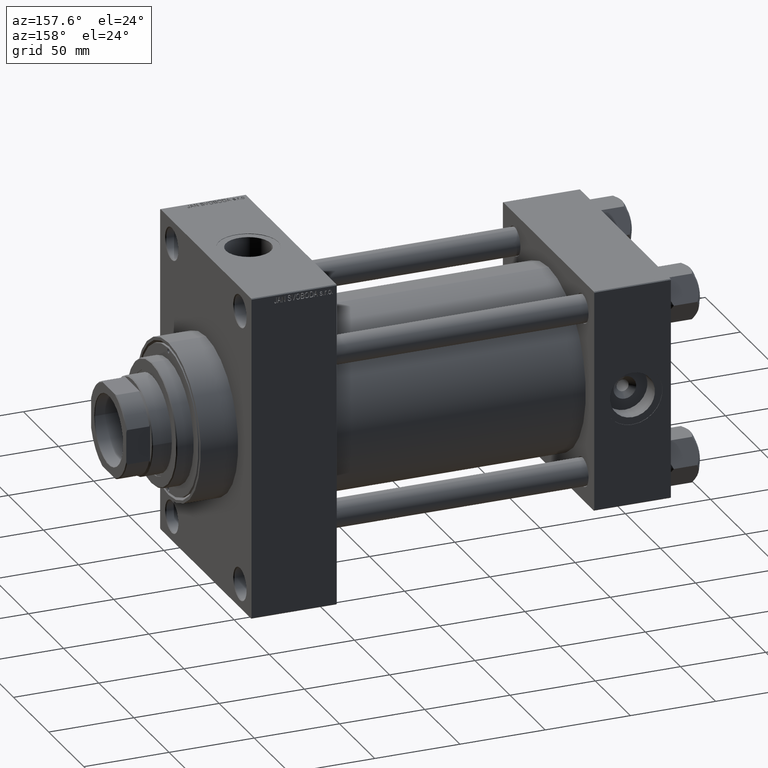
[diagram: clean part render]
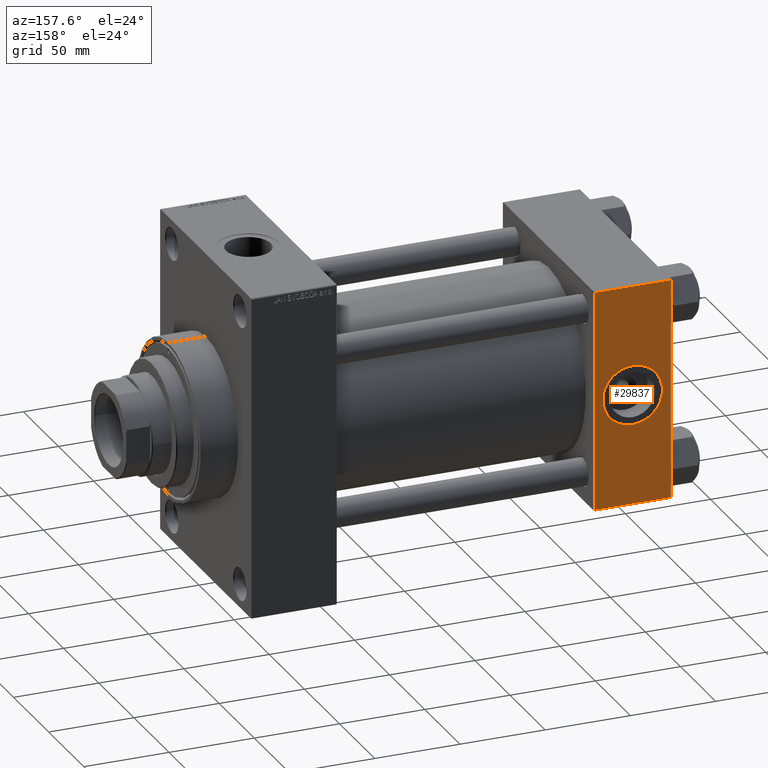
[diagram: same view with one face highlighted and labeled with its STEP entity id]
A machine part, auxiliary view. The second image highlights one B-rep face of the part: STEP entity #29837.
In plain terms, the highlighted planar face has unit normal (0, 1, 0).
Its self-contained STEP definition (entity closure, byte-faithful):
#1156 = FACE_OUTER_BOUND ( 'NONE', #6108, .T. ) ;
#1562 = LINE ( 'NONE', #45698, #44226 ) ;
#2763 = VERTEX_POINT ( 'NONE', #28793 ) ;
#4545 = VERTEX_POINT ( 'NONE', #34103 ) ;
#5015 = EDGE_LOOP ( 'NONE', ( #11752, #7828 ) ) ;
#6108 = EDGE_LOOP ( 'NONE', ( #44855, #47556, #45226, #29508 ) ) ;
#7327 = DIRECTION ( 'NONE',  ( 0.000000000000000000, 1.000000000000000000, 0.000000000000000000 ) ) ;
#7828 = ORIENTED_EDGE ( 'NONE', *, *, #17780, .F. ) ;
#8787 = DIRECTION ( 'NONE',  ( 1.000000000000000000, 0.000000000000000000, 0.000000000000000000 ) ) ;
#10614 = AXIS2_PLACEMENT_3D ( 'NONE', #29166, #7327, #43946 ) ;
#11752 = ORIENTED_EDGE ( 'NONE', *, *, #16948, .F. ) ;
#13026 = DIRECTION ( 'NONE',  ( 0.000000000000000000, -0.000000000000000000, 1.000000000000000000 ) ) ;
#14226 = EDGE_CURVE ( 'NONE', #21975, #23207, #20177, .T. ) ;
#16948 = EDGE_CURVE ( 'NONE', #4545, #19450, #25339, .T. ) ;
#17197 = AXIS2_PLACEMENT_3D ( 'NONE', #46249, #27598, #13026 ) ;
#17780 = EDGE_CURVE ( 'NONE', #19450, #4545, #33139, .T. ) ;
#19149 = CARTESIAN_POINT ( 'NONE',  ( 45.00000000000000000, 65.00000000000000000, -64.49999999999995737 ) ) ;
#19450 = VERTEX_POINT ( 'NONE', #37961 ) ;
#20064 = PLANE ( 'NONE',  #17197 ) ;
#20177 = LINE ( 'NONE', #26759, #42394 ) ;
#20975 = LINE ( 'NONE', #40144, #38892 ) ;
#21975 = VERTEX_POINT ( 'NONE', #39719 ) ;
#23207 = VERTEX_POINT ( 'NONE', #34540 ) ;
#24107 = VERTEX_POINT ( 'NONE', #41262 ) ;
#25147 = EDGE_CURVE ( 'NONE', #2763, #24107, #25980, .T. ) ;
#25339 = CIRCLE ( 'NONE', #10614, 17.50000000000000000 ) ;
#25424 = EDGE_CURVE ( 'NONE', #23207, #2763, #1562, .T. ) ;
#25980 = LINE ( 'NONE', #19149, #44968 ) ;
#26449 = DIRECTION ( 'NONE',  ( -1.000000000000000000, 0.000000000000000000, 0.000000000000000000 ) ) ;
#26759 = CARTESIAN_POINT ( 'NONE',  ( 45.00000000000000000, 65.00000000000000000, 64.49999999999998579 ) ) ;
#27598 = DIRECTION ( 'NONE',  ( -0.000000000000000000, 1.000000000000000000, 0.000000000000000000 ) ) ;
#28793 = CARTESIAN_POINT ( 'NONE',  ( 45.00000000000000000, 65.00000000000000000, -64.49999999999995737 ) ) ;
#29166 = CARTESIAN_POINT ( 'NONE',  ( 22.50000000000000000, 65.00000000000000000, 0.000000000000000000 ) ) ;
#29508 = ORIENTED_EDGE ( 'NONE', *, *, #14226, .T. ) ;
#29837 = ADVANCED_FACE ( 'NONE', ( #42154, #1156 ), #20064, .T. ) ;
#29882 = CARTESIAN_POINT ( 'NONE',  ( 22.50000000000000000, 65.00000000000000000, 0.000000000000000000 ) ) ;
#30448 = DIRECTION ( 'NONE',  ( 0.000000000000000000, 0.000000000000000000, -1.000000000000000000 ) ) ;
#32399 = DIRECTION ( 'NONE',  ( 0.000000000000000000, 0.000000000000000000, -1.000000000000000000 ) ) ;
#33139 = CIRCLE ( 'NONE', #40085, 17.50000000000000000 ) ;
#34103 = CARTESIAN_POINT ( 'NONE',  ( 22.50000000000000000, 65.00000000000000000, 17.50000000000000000 ) ) ;
#34540 = CARTESIAN_POINT ( 'NONE',  ( 45.00000000000000000, 65.00000000000000000, 64.49999999999998579 ) ) ;
#37396 = DIRECTION ( 'NONE',  ( 0.000000000000000000, 0.000000000000000000, 1.000000000000000000 ) ) ;
#37961 = CARTESIAN_POINT ( 'NONE',  ( 22.50000000000000355, 65.00000000000000000, -17.50000000000000000 ) ) ;
#38892 = VECTOR ( 'NONE', #32399, 1000.000000000000000 ) ;
#39719 = CARTESIAN_POINT ( 'NONE',  ( 0.000000000000000000, 65.00000000000000000, 64.49999999999998579 ) ) ;
#40085 = AXIS2_PLACEMENT_3D ( 'NONE', #29882, #44429, #37396 ) ;
#40144 = CARTESIAN_POINT ( 'NONE',  ( 0.000000000000000000, 65.00000000000000000, 65.00000000000001421 ) ) ;
#41262 = CARTESIAN_POINT ( 'NONE',  ( 0.000000000000000000, 65.00000000000000000, -64.49999999999995737 ) ) ;
#42154 = FACE_BOUND ( 'NONE', #5015, .T. ) ;
#42394 = VECTOR ( 'NONE', #8787, 1000.000000000000000 ) ;
#43946 = DIRECTION ( 'NONE',  ( 0.000000000000000000, 0.000000000000000000, 1.000000000000000000 ) ) ;
#44226 = VECTOR ( 'NONE', #30448, 1000.000000000000000 ) ;
#44429 = DIRECTION ( 'NONE',  ( 0.000000000000000000, 1.000000000000000000, 0.000000000000000000 ) ) ;
#44809 = EDGE_CURVE ( 'NONE', #21975, #24107, #20975, .T. ) ;
#44855 = ORIENTED_EDGE ( 'NONE', *, *, #25424, .T. ) ;
#44968 = VECTOR ( 'NONE', #26449, 1000.000000000000000 ) ;
#45226 = ORIENTED_EDGE ( 'NONE', *, *, #44809, .F. ) ;
#45698 = CARTESIAN_POINT ( 'NONE',  ( 45.00000000000000000, 65.00000000000000000, 65.00000000000001421 ) ) ;
#46249 = CARTESIAN_POINT ( 'NONE',  ( 45.00000000000000000, 65.00000000000000000, 65.00000000000001421 ) ) ;
#47556 = ORIENTED_EDGE ( 'NONE', *, *, #25147, .T. ) ;